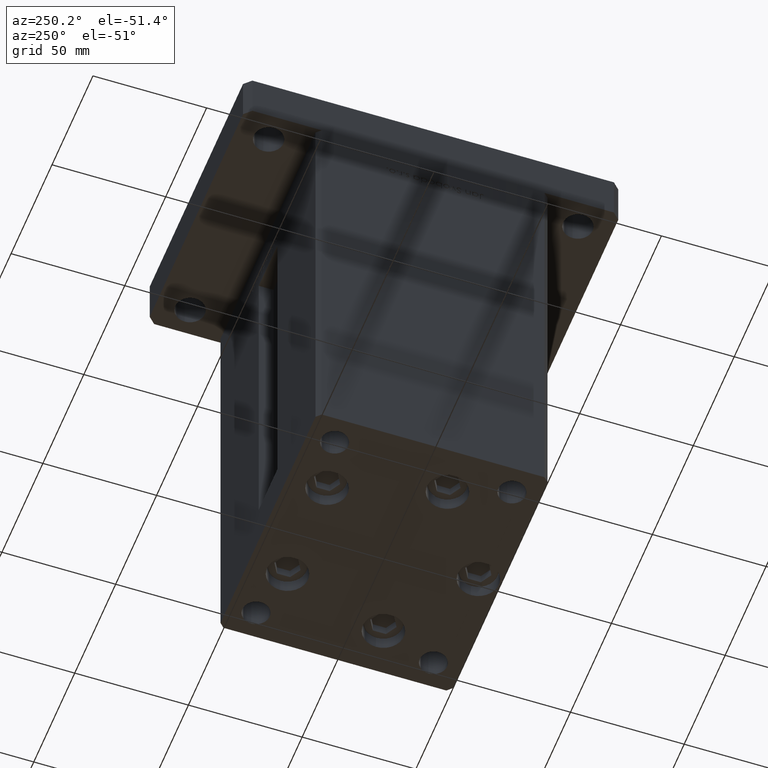
[diagram: clean part render]
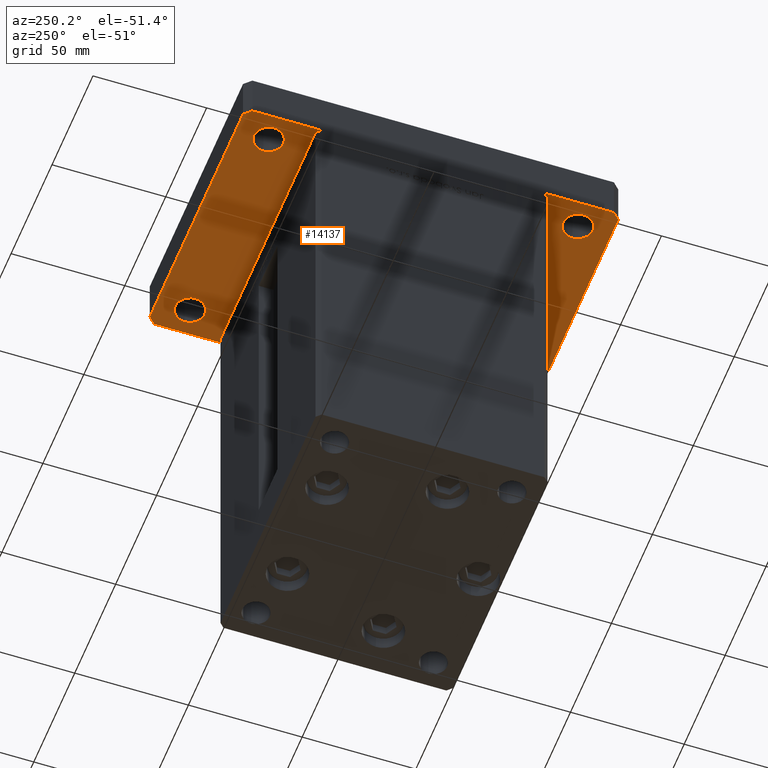
[diagram: same view with one face highlighted and labeled with its STEP entity id]
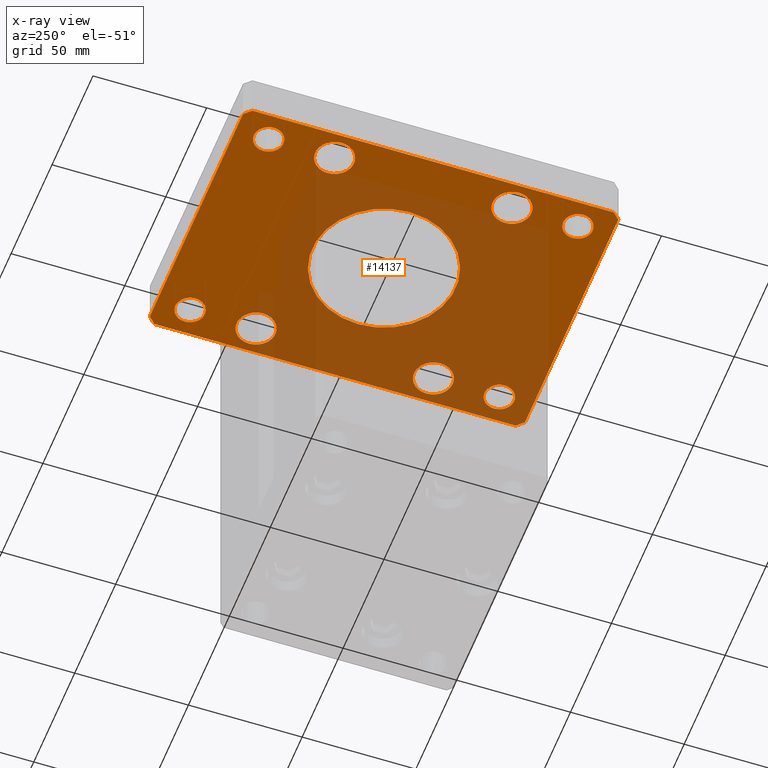
[diagram: x-ray of the same camera — body ghosted, the highlighted face saturated]
A machine part, auxiliary view. The second image highlights one B-rep face of the part: STEP entity #14137.
The next image is the same camera in x-ray: the body ghosted, the highlighted face saturated — about 54% of this face is hidden behind the body in this view.
In plain terms, the highlighted planar face has unit normal (0, 0, 1).
Its self-contained STEP definition (entity closure, byte-faithful):
#86 = CIRCLE ( 'NONE', #37488, 6.500000000000005329 ) ;
#91 = EDGE_CURVE ( 'NONE', #41751, #22124, #24953, .T. ) ;
#98 = VERTEX_POINT ( 'NONE', #51420 ) ;
#296 = DIRECTION ( 'NONE',  ( 1.000000000000000000, 0.000000000000000000, 0.000000000000000000 ) ) ;
#1046 = DIRECTION ( 'NONE',  ( -1.000000000000000000, 0.000000000000000000, 0.000000000000000000 ) ) ;
#1127 = EDGE_CURVE ( 'NONE', #25035, #98, #40641, .T. ) ;
#1267 = FACE_BOUND ( 'NONE', #40582, .T. ) ;
#1643 = CARTESIAN_POINT ( 'NONE',  ( -60.00000000000002842, 79.50000000000001421, 0.000000000000000000 ) ) ;
#1702 = ORIENTED_EDGE ( 'NONE', *, *, #20926, .F. ) ;
#1789 = DIRECTION ( 'NONE',  ( 0.000000000000000000, 0.000000000000000000, 1.000000000000000000 ) ) ;
#2055 = VERTEX_POINT ( 'NONE', #3555 ) ;
#2087 = DIRECTION ( 'NONE',  ( 1.000000000000000000, 0.000000000000000000, 0.000000000000000000 ) ) ;
#2108 = CIRCLE ( 'NONE', #32549, 6.500000000000005329 ) ;
#2254 = DIRECTION ( 'NONE',  ( 4.364084216293856438E-17, 1.000000000000000000, 0.000000000000000000 ) ) ;
#2275 = EDGE_LOOP ( 'NONE', ( #6219, #32734 ) ) ;
#2897 = VECTOR ( 'NONE', #24441, 1000.000000000000000 ) ;
#2934 = CIRCLE ( 'NONE', #42070, 8.499999999999992895 ) ;
#3437 = CARTESIAN_POINT ( 'NONE',  ( 41.49999999999996447, -68.00000000000001421, 0.000000000000000000 ) ) ;
#3555 = CARTESIAN_POINT ( 'NONE',  ( 60.00000000000000711, 79.50000000000001421, 0.000000000000000000 ) ) ;
#3631 = AXIS2_PLACEMENT_3D ( 'NONE', #51348, #1789, #21716 ) ;
#5509 = AXIS2_PLACEMENT_3D ( 'NONE', #25187, #33069, #41242 ) ;
#5605 = FACE_BOUND ( 'NONE', #50185, .T. ) ;
#5745 = CARTESIAN_POINT ( 'NONE',  ( -48.00000000000000000, 68.00000000000001421, 0.000000000000000000 ) ) ;
#5939 = DIRECTION ( 'NONE',  ( 1.000000000000000000, 0.000000000000000000, 0.000000000000000000 ) ) ;
#6126 = DIRECTION ( 'NONE',  ( 1.000000000000000000, 0.000000000000000000, 0.000000000000000000 ) ) ;
#6167 = CARTESIAN_POINT ( 'NONE',  ( 39.50000000000000711, -38.99999999999999289, 0.000000000000000000 ) ) ;
#6219 = ORIENTED_EDGE ( 'NONE', *, *, #33526, .T. ) ;
#6224 = VERTEX_POINT ( 'NONE', #50443 ) ;
#6356 = CARTESIAN_POINT ( 'NONE',  ( 56.49999999999999289, -38.99999999999999289, 0.000000000000000000 ) ) ;
#6959 = CIRCLE ( 'NONE', #13072, 8.499999999999992895 ) ;
#7361 = DIRECTION ( 'NONE',  ( 1.000000000000000000, 0.000000000000000000, 0.000000000000000000 ) ) ;
#7514 = DIRECTION ( 'NONE',  ( 1.000000000000000000, 0.000000000000000000, 0.000000000000000000 ) ) ;
#7699 = LINE ( 'NONE', #16422, #25408 ) ;
#8061 = LINE ( 'NONE', #41032, #20344 ) ;
#8070 = ORIENTED_EDGE ( 'NONE', *, *, #24130, .T. ) ;
#8234 = DIRECTION ( 'NONE',  ( -0.7071067811865474617, -0.7071067811865474617, 0.000000000000000000 ) ) ;
#8450 = CARTESIAN_POINT ( 'NONE',  ( 48.00000000000000000, -38.99999999999999289, 0.000000000000000000 ) ) ;
#9000 = DIRECTION ( 'NONE',  ( 0.000000000000000000, 0.000000000000000000, 1.000000000000000000 ) ) ;
#9168 = FACE_OUTER_BOUND ( 'NONE', #49647, .T. ) ;
#9648 = VECTOR ( 'NONE', #12539, 1000.000000000000114 ) ;
#9947 = CIRCLE ( 'NONE', #40400, 8.499999999999992895 ) ;
#10496 = FACE_BOUND ( 'NONE', #2275, .T. ) ;
#10772 = CIRCLE ( 'NONE', #19504, 8.500000000000000000 ) ;
#10837 = VERTEX_POINT ( 'NONE', #24177 ) ;
#11227 = VERTEX_POINT ( 'NONE', #20551 ) ;
#11555 = EDGE_LOOP ( 'NONE', ( #32812, #48335 ) ) ;
#11593 = CIRCLE ( 'NONE', #27265, 8.499999999999992895 ) ;
#11599 = CIRCLE ( 'NONE', #5509, 6.500000000000005329 ) ;
#11864 = CARTESIAN_POINT ( 'NONE',  ( 48.00000000000000000, 67.99999999999998579, 0.000000000000000000 ) ) ;
#12195 = DIRECTION ( 'NONE',  ( 1.000000000000000000, 0.000000000000000000, 0.000000000000000000 ) ) ;
#12331 = EDGE_CURVE ( 'NONE', #11227, #6224, #38354, .T. ) ;
#12539 = DIRECTION ( 'NONE',  ( 0.7071067811865459074, 0.7071067811865491270, 0.000000000000000000 ) ) ;
#12567 = VECTOR ( 'NONE', #8234, 1000.000000000000114 ) ;
#12592 = ORIENTED_EDGE ( 'NONE', *, *, #91, .T. ) ;
#13015 = VERTEX_POINT ( 'NONE', #1643 ) ;
#13028 = CARTESIAN_POINT ( 'NONE',  ( 0.000000000000000000, 0.000000000000000000, 0.000000000000000000 ) ) ;
#13072 = AXIS2_PLACEMENT_3D ( 'NONE', #8450, #9000, #296 ) ;
#13252 = DIRECTION ( 'NONE',  ( -0.7071067811865435759, 0.7071067811865515695, 0.000000000000000000 ) ) ;
#13518 = ORIENTED_EDGE ( 'NONE', *, *, #14122, .F. ) ;
#13519 = EDGE_LOOP ( 'NONE', ( #33398, #43189 ) ) ;
#13806 = CARTESIAN_POINT ( 'NONE',  ( -56.50000000000000711, -39.00000000000000000, 0.000000000000000000 ) ) ;
#13888 = DIRECTION ( 'NONE',  ( 0.000000000000000000, 0.000000000000000000, 1.000000000000000000 ) ) ;
#13962 = EDGE_CURVE ( 'NONE', #41924, #30371, #43579, .T. ) ;
#14075 = CIRCLE ( 'NONE', #34064, 6.500000000000005329 ) ;
#14122 = EDGE_CURVE ( 'NONE', #2055, #18824, #33682, .T. ) ;
#14137 = ADVANCED_FACE ( 'NONE', ( #46474, #9168, #42392, #20365, #36974, #16279, #1267, #5605, #47796, #10496 ), #17623, .F. ) ;
#14256 = VERTEX_POINT ( 'NONE', #27392 ) ;
#14883 = EDGE_CURVE ( 'NONE', #32391, #10837, #14075, .T. ) ;
#15632 = DIRECTION ( 'NONE',  ( 1.000000000000000000, 0.000000000000000000, 0.000000000000000000 ) ) ;
#15695 = EDGE_CURVE ( 'NONE', #16533, #44955, #50101, .T. ) ;
#15980 = CARTESIAN_POINT ( 'NONE',  ( 60.00000000000000000, -79.49999999999990052, 0.000000000000000000 ) ) ;
#16279 = FACE_BOUND ( 'NONE', #13519, .T. ) ;
#16422 = CARTESIAN_POINT ( 'NONE',  ( -60.00000000000002842, 79.50000000000001421, 0.000000000000000000 ) ) ;
#16522 = ORIENTED_EDGE ( 'NONE', *, *, #36143, .T. ) ;
#16533 = VERTEX_POINT ( 'NONE', #22885 ) ;
#16990 = VERTEX_POINT ( 'NONE', #3437 ) ;
#17082 = AXIS2_PLACEMENT_3D ( 'NONE', #32124, #51539, #39285 ) ;
#17441 = AXIS2_PLACEMENT_3D ( 'NONE', #34052, #21285, #41418 ) ;
#17479 = AXIS2_PLACEMENT_3D ( 'NONE', #35427, #30274, #22378 ) ;
#17623 = PLANE ( 'NONE',  #3631 ) ;
#18479 = DIRECTION ( 'NONE',  ( 0.000000000000000000, 0.000000000000000000, -1.000000000000000000 ) ) ;
#18682 = CARTESIAN_POINT ( 'NONE',  ( -57.00000000000003553, 82.50000000000000000, 0.000000000000000000 ) ) ;
#18824 = VERTEX_POINT ( 'NONE', #50764 ) ;
#19504 = AXIS2_PLACEMENT_3D ( 'NONE', #23818, #52931, #15632 ) ;
#20344 = VECTOR ( 'NONE', #53291, 1000.000000000000114 ) ;
#20365 = FACE_BOUND ( 'NONE', #41309, .T. ) ;
#20387 = VECTOR ( 'NONE', #21684, 1000.000000000000000 ) ;
#20551 = CARTESIAN_POINT ( 'NONE',  ( 54.50000000000000711, 67.99999999999998579, 0.000000000000000000 ) ) ;
#20926 = EDGE_CURVE ( 'NONE', #44955, #2055, #52074, .T. ) ;
#20935 = CARTESIAN_POINT ( 'NONE',  ( -47.99999999999997158, -68.00000000000001421, 0.000000000000000000 ) ) ;
#21285 = DIRECTION ( 'NONE',  ( 0.000000000000000000, 0.000000000000000000, 1.000000000000000000 ) ) ;
#21684 = DIRECTION ( 'NONE',  ( -1.000000000000000000, -2.434699615406043739E-16, 0.000000000000000000 ) ) ;
#21707 = ORIENTED_EDGE ( 'NONE', *, *, #27081, .F. ) ;
#21716 = DIRECTION ( 'NONE',  ( 1.000000000000000000, 0.000000000000000000, -0.000000000000000000 ) ) ;
#22124 = VERTEX_POINT ( 'NONE', #26717 ) ;
#22378 = DIRECTION ( 'NONE',  ( 1.000000000000000000, 0.000000000000000000, 0.000000000000000000 ) ) ;
#22380 = DIRECTION ( 'NONE',  ( 0.000000000000000000, 0.000000000000000000, 1.000000000000000000 ) ) ;
#22433 = VERTEX_POINT ( 'NONE', #46742 ) ;
#22467 = CARTESIAN_POINT ( 'NONE',  ( -41.49999999999999289, 68.00000000000001421, 0.000000000000000000 ) ) ;
#22580 = CARTESIAN_POINT ( 'NONE',  ( 0.000000000000000000, 0.000000000000000000, 0.000000000000000000 ) ) ;
#22808 = CARTESIAN_POINT ( 'NONE',  ( -47.99999999999997158, -68.00000000000001421, 0.000000000000000000 ) ) ;
#22885 = CARTESIAN_POINT ( 'NONE',  ( 57.00000000000000711, -82.49999999999990052, 0.000000000000000000 ) ) ;
#23372 = ORIENTED_EDGE ( 'NONE', *, *, #38805, .F. ) ;
#23382 = ORIENTED_EDGE ( 'NONE', *, *, #25443, .T. ) ;
#23512 = CARTESIAN_POINT ( 'NONE',  ( 60.00000000000000000, -79.49999999999990052, 0.000000000000000000 ) ) ;
#23779 = AXIS2_PLACEMENT_3D ( 'NONE', #13028, #47043, #1046 ) ;
#23818 = CARTESIAN_POINT ( 'NONE',  ( -48.00000000000000711, -39.00000000000000000, 0.000000000000000000 ) ) ;
#24099 = AXIS2_PLACEMENT_3D ( 'NONE', #41115, #29665, #5939 ) ;
#24130 = EDGE_CURVE ( 'NONE', #98, #25035, #2934, .T. ) ;
#24177 = CARTESIAN_POINT ( 'NONE',  ( -54.50000000000000711, 68.00000000000001421, 0.000000000000000000 ) ) ;
#24342 = DIRECTION ( 'NONE',  ( 2.618450529776312260E-16, -1.000000000000000000, 0.000000000000000000 ) ) ;
#24441 = DIRECTION ( 'NONE',  ( 1.000000000000000000, 9.738798461624180871E-16, 0.000000000000000000 ) ) ;
#24673 = DIRECTION ( 'NONE',  ( 1.000000000000000000, 0.000000000000000000, 0.000000000000000000 ) ) ;
#24953 = CIRCLE ( 'NONE', #24099, 8.499999999999992895 ) ;
#25002 = DIRECTION ( 'NONE',  ( 0.000000000000000000, 0.000000000000000000, 1.000000000000000000 ) ) ;
#25035 = VERTEX_POINT ( 'NONE', #42050 ) ;
#25187 = CARTESIAN_POINT ( 'NONE',  ( 47.99999999999997158, -68.00000000000001421, 0.000000000000000000 ) ) ;
#25408 = VECTOR ( 'NONE', #24342, 1000.000000000000000 ) ;
#25436 = ORIENTED_EDGE ( 'NONE', *, *, #12331, .T. ) ;
#25443 = EDGE_CURVE ( 'NONE', #10837, #32391, #30785, .T. ) ;
#25629 = ORIENTED_EDGE ( 'NONE', *, *, #45315, .T. ) ;
#25665 = ORIENTED_EDGE ( 'NONE', *, *, #14883, .T. ) ;
#26217 = CARTESIAN_POINT ( 'NONE',  ( -31.50000000000000000, 0.000000000000000000, 0.000000000000000000 ) ) ;
#26557 = AXIS2_PLACEMENT_3D ( 'NONE', #22808, #39394, #2087 ) ;
#26607 = CARTESIAN_POINT ( 'NONE',  ( -59.99999999999998579, -79.50000000000002842, 0.000000000000000000 ) ) ;
#26717 = CARTESIAN_POINT ( 'NONE',  ( 56.49999999999999289, 38.99999999999999289, 0.000000000000000000 ) ) ;
#27081 = EDGE_CURVE ( 'NONE', #18824, #41713, #33647, .T. ) ;
#27265 = AXIS2_PLACEMENT_3D ( 'NONE', #34854, #13888, #33787 ) ;
#27392 = CARTESIAN_POINT ( 'NONE',  ( -56.99999999999999289, -82.50000000000001421, 0.000000000000000000 ) ) ;
#27450 = EDGE_LOOP ( 'NONE', ( #23382, #25665 ) ) ;
#28015 = VECTOR ( 'NONE', #13252, 999.9999999999998863 ) ;
#28506 = LINE ( 'NONE', #41033, #2897 ) ;
#29255 = CARTESIAN_POINT ( 'NONE',  ( 31.50000000000000000, 3.857637417314162689E-15, 0.000000000000000000 ) ) ;
#29363 = DIRECTION ( 'NONE',  ( 1.000000000000000000, 0.000000000000000000, 0.000000000000000000 ) ) ;
#29665 = DIRECTION ( 'NONE',  ( 0.000000000000000000, 0.000000000000000000, 1.000000000000000000 ) ) ;
#30178 = VERTEX_POINT ( 'NONE', #13806 ) ;
#30274 = DIRECTION ( 'NONE',  ( 0.000000000000000000, 0.000000000000000000, 1.000000000000000000 ) ) ;
#30371 = VERTEX_POINT ( 'NONE', #26217 ) ;
#30445 = CIRCLE ( 'NONE', #17441, 6.500000000000005329 ) ;
#30578 = ORIENTED_EDGE ( 'NONE', *, *, #1127, .T. ) ;
#30785 = CIRCLE ( 'NONE', #32546, 6.500000000000005329 ) ;
#30862 = CIRCLE ( 'NONE', #26557, 6.500000000000005329 ) ;
#31195 = CARTESIAN_POINT ( 'NONE',  ( 39.50000000000000711, 38.99999999999999289, 0.000000000000000000 ) ) ;
#31257 = CARTESIAN_POINT ( 'NONE',  ( -54.49999999999997868, -68.00000000000001421, 0.000000000000000000 ) ) ;
#31608 = VERTEX_POINT ( 'NONE', #6356 ) ;
#32038 = DIRECTION ( 'NONE',  ( 0.000000000000000000, 0.000000000000000000, 1.000000000000000000 ) ) ;
#32124 = CARTESIAN_POINT ( 'NONE',  ( -48.00000000000000711, -39.00000000000000000, 0.000000000000000000 ) ) ;
#32391 = VERTEX_POINT ( 'NONE', #22467 ) ;
#32546 = AXIS2_PLACEMENT_3D ( 'NONE', #5745, #22380, #46339 ) ;
#32549 = AXIS2_PLACEMENT_3D ( 'NONE', #20935, #32649, #29363 ) ;
#32649 = DIRECTION ( 'NONE',  ( 0.000000000000000000, 0.000000000000000000, 1.000000000000000000 ) ) ;
#32734 = ORIENTED_EDGE ( 'NONE', *, *, #41897, .T. ) ;
#32756 = LINE ( 'NONE', #33027, #12567 ) ;
#32812 = ORIENTED_EDGE ( 'NONE', *, *, #49995, .T. ) ;
#33027 = CARTESIAN_POINT ( 'NONE',  ( -57.00000000000003553, 82.50000000000000000, 0.000000000000000000 ) ) ;
#33052 = VERTEX_POINT ( 'NONE', #6167 ) ;
#33069 = DIRECTION ( 'NONE',  ( 0.000000000000000000, 0.000000000000000000, 1.000000000000000000 ) ) ;
#33222 = CARTESIAN_POINT ( 'NONE',  ( -48.00000000000000000, 68.00000000000001421, 0.000000000000000000 ) ) ;
#33258 = ORIENTED_EDGE ( 'NONE', *, *, #46561, .F. ) ;
#33398 = ORIENTED_EDGE ( 'NONE', *, *, #43112, .T. ) ;
#33489 = ORIENTED_EDGE ( 'NONE', *, *, #44765, .F. ) ;
#33516 = EDGE_CURVE ( 'NONE', #31608, #33052, #6959, .T. ) ;
#33526 = EDGE_CURVE ( 'NONE', #16990, #43358, #30445, .T. ) ;
#33647 = LINE ( 'NONE', #41284, #20387 ) ;
#33682 = LINE ( 'NONE', #50286, #28015 ) ;
#33787 = DIRECTION ( 'NONE',  ( 1.000000000000000000, 0.000000000000000000, 0.000000000000000000 ) ) ;
#34033 = AXIS2_PLACEMENT_3D ( 'NONE', #22580, #18479, #51956 ) ;
#34052 = CARTESIAN_POINT ( 'NONE',  ( 47.99999999999997158, -68.00000000000001421, 0.000000000000000000 ) ) ;
#34057 = EDGE_LOOP ( 'NONE', ( #30578, #8070 ) ) ;
#34064 = AXIS2_PLACEMENT_3D ( 'NONE', #33222, #36780, #7361 ) ;
#34213 = DIRECTION ( 'NONE',  ( 0.000000000000000000, 0.000000000000000000, 1.000000000000000000 ) ) ;
#34854 = CARTESIAN_POINT ( 'NONE',  ( 48.00000000000000000, -38.99999999999999289, 0.000000000000000000 ) ) ;
#35427 = CARTESIAN_POINT ( 'NONE',  ( 48.00000000000000000, 67.99999999999998579, 0.000000000000000000 ) ) ;
#36143 = EDGE_CURVE ( 'NONE', #6224, #11227, #86, .T. ) ;
#36295 = EDGE_LOOP ( 'NONE', ( #48817, #48045 ) ) ;
#36478 = VERTEX_POINT ( 'NONE', #31257 ) ;
#36780 = DIRECTION ( 'NONE',  ( 0.000000000000000000, 0.000000000000000000, 1.000000000000000000 ) ) ;
#36974 = FACE_BOUND ( 'NONE', #27450, .T. ) ;
#37488 = AXIS2_PLACEMENT_3D ( 'NONE', #11864, #45073, #24673 ) ;
#38354 = CIRCLE ( 'NONE', #17479, 6.500000000000005329 ) ;
#38805 = EDGE_CURVE ( 'NONE', #13015, #49935, #7699, .T. ) ;
#39285 = DIRECTION ( 'NONE',  ( 1.000000000000000000, 0.000000000000000000, 0.000000000000000000 ) ) ;
#39394 = DIRECTION ( 'NONE',  ( 0.000000000000000000, 0.000000000000000000, 1.000000000000000000 ) ) ;
#40400 = AXIS2_PLACEMENT_3D ( 'NONE', #44557, #32038, #7514 ) ;
#40582 = EDGE_LOOP ( 'NONE', ( #25629, #53284 ) ) ;
#40641 = CIRCLE ( 'NONE', #50195, 8.499999999999992895 ) ;
#40795 = EDGE_CURVE ( 'NONE', #14256, #16533, #28506, .T. ) ;
#41032 = CARTESIAN_POINT ( 'NONE',  ( -59.99999999999998579, -79.50000000000002842, 0.000000000000000000 ) ) ;
#41033 = CARTESIAN_POINT ( 'NONE',  ( -56.99999999999999289, -82.50000000000001421, 0.000000000000000000 ) ) ;
#41115 = CARTESIAN_POINT ( 'NONE',  ( 48.00000000000000000, 38.99999999999999289, 0.000000000000000000 ) ) ;
#41242 = DIRECTION ( 'NONE',  ( 1.000000000000000000, 0.000000000000000000, 0.000000000000000000 ) ) ;
#41284 = CARTESIAN_POINT ( 'NONE',  ( 57.00000000000002132, 82.50000000000002842, 0.000000000000000000 ) ) ;
#41309 = EDGE_LOOP ( 'NONE', ( #16522, #25436 ) ) ;
#41418 = DIRECTION ( 'NONE',  ( 1.000000000000000000, 0.000000000000000000, 0.000000000000000000 ) ) ;
#41713 = VERTEX_POINT ( 'NONE', #18682 ) ;
#41751 = VERTEX_POINT ( 'NONE', #31195 ) ;
#41863 = CARTESIAN_POINT ( 'NONE',  ( -48.00000000000001421, 39.00000000000000000, 0.000000000000000000 ) ) ;
#41897 = EDGE_CURVE ( 'NONE', #43358, #16990, #11599, .T. ) ;
#41924 = VERTEX_POINT ( 'NONE', #29255 ) ;
#42050 = CARTESIAN_POINT ( 'NONE',  ( -56.50000000000000711, 39.00000000000000000, 0.000000000000000000 ) ) ;
#42070 = AXIS2_PLACEMENT_3D ( 'NONE', #42643, #34213, #6126 ) ;
#42209 = CARTESIAN_POINT ( 'NONE',  ( 57.00000000000000711, -82.49999999999990052, 0.000000000000000000 ) ) ;
#42358 = VERTEX_POINT ( 'NONE', #46622 ) ;
#42392 = FACE_BOUND ( 'NONE', #11555, .T. ) ;
#42643 = CARTESIAN_POINT ( 'NONE',  ( -48.00000000000001421, 39.00000000000000000, 0.000000000000000000 ) ) ;
#43112 = EDGE_CURVE ( 'NONE', #30178, #42358, #10772, .T. ) ;
#43189 = ORIENTED_EDGE ( 'NONE', *, *, #53411, .T. ) ;
#43358 = VERTEX_POINT ( 'NONE', #48507 ) ;
#43579 = CIRCLE ( 'NONE', #34033, 31.50000000000000000 ) ;
#44297 = EDGE_CURVE ( 'NONE', #22433, #36478, #2108, .T. ) ;
#44557 = CARTESIAN_POINT ( 'NONE',  ( 48.00000000000000000, 38.99999999999999289, 0.000000000000000000 ) ) ;
#44765 = EDGE_CURVE ( 'NONE', #41713, #13015, #32756, .T. ) ;
#44947 = EDGE_CURVE ( 'NONE', #22124, #41751, #9947, .T. ) ;
#44955 = VERTEX_POINT ( 'NONE', #15980 ) ;
#45073 = DIRECTION ( 'NONE',  ( 0.000000000000000000, 0.000000000000000000, 1.000000000000000000 ) ) ;
#45315 = EDGE_CURVE ( 'NONE', #33052, #31608, #11593, .T. ) ;
#46324 = EDGE_CURVE ( 'NONE', #30371, #41924, #49867, .T. ) ;
#46339 = DIRECTION ( 'NONE',  ( 1.000000000000000000, 0.000000000000000000, 0.000000000000000000 ) ) ;
#46474 = FACE_BOUND ( 'NONE', #36295, .T. ) ;
#46561 = EDGE_CURVE ( 'NONE', #49935, #14256, #8061, .T. ) ;
#46622 = CARTESIAN_POINT ( 'NONE',  ( -39.50000000000000711, -39.00000000000000000, 0.000000000000000000 ) ) ;
#46742 = CARTESIAN_POINT ( 'NONE',  ( -41.49999999999996447, -68.00000000000001421, 0.000000000000000000 ) ) ;
#47043 = DIRECTION ( 'NONE',  ( 0.000000000000000000, 0.000000000000000000, -1.000000000000000000 ) ) ;
#47312 = ORIENTED_EDGE ( 'NONE', *, *, #15695, .F. ) ;
#47796 = FACE_BOUND ( 'NONE', #34057, .T. ) ;
#48045 = ORIENTED_EDGE ( 'NONE', *, *, #13962, .F. ) ;
#48335 = ORIENTED_EDGE ( 'NONE', *, *, #44297, .T. ) ;
#48507 = CARTESIAN_POINT ( 'NONE',  ( 54.49999999999997868, -68.00000000000001421, 0.000000000000000000 ) ) ;
#48817 = ORIENTED_EDGE ( 'NONE', *, *, #46324, .F. ) ;
#48951 = VECTOR ( 'NONE', #2254, 1000.000000000000000 ) ;
#49081 = ORIENTED_EDGE ( 'NONE', *, *, #40795, .F. ) ;
#49122 = ORIENTED_EDGE ( 'NONE', *, *, #44947, .T. ) ;
#49647 = EDGE_LOOP ( 'NONE', ( #49081, #33258, #23372, #33489, #21707, #13518, #1702, #47312 ) ) ;
#49867 = CIRCLE ( 'NONE', #23779, 31.50000000000000000 ) ;
#49935 = VERTEX_POINT ( 'NONE', #26607 ) ;
#49995 = EDGE_CURVE ( 'NONE', #36478, #22433, #30862, .T. ) ;
#50101 = LINE ( 'NONE', #42209, #9648 ) ;
#50105 = CIRCLE ( 'NONE', #17082, 8.500000000000000000 ) ;
#50185 = EDGE_LOOP ( 'NONE', ( #12592, #49122 ) ) ;
#50195 = AXIS2_PLACEMENT_3D ( 'NONE', #41863, #25002, #12195 ) ;
#50286 = CARTESIAN_POINT ( 'NONE',  ( 60.00000000000000711, 79.50000000000001421, 0.000000000000000000 ) ) ;
#50443 = CARTESIAN_POINT ( 'NONE',  ( 41.49999999999999289, 67.99999999999998579, 0.000000000000000000 ) ) ;
#50764 = CARTESIAN_POINT ( 'NONE',  ( 57.00000000000002132, 82.50000000000002842, 0.000000000000000000 ) ) ;
#51348 = CARTESIAN_POINT ( 'NONE',  ( 0.000000000000000000, 0.000000000000000000, 0.000000000000000000 ) ) ;
#51420 = CARTESIAN_POINT ( 'NONE',  ( -39.50000000000002132, 39.00000000000000000, 0.000000000000000000 ) ) ;
#51539 = DIRECTION ( 'NONE',  ( 0.000000000000000000, 0.000000000000000000, 1.000000000000000000 ) ) ;
#51956 = DIRECTION ( 'NONE',  ( -1.000000000000000000, 0.000000000000000000, 0.000000000000000000 ) ) ;
#52074 = LINE ( 'NONE', #23512, #48951 ) ;
#52931 = DIRECTION ( 'NONE',  ( 0.000000000000000000, 0.000000000000000000, 1.000000000000000000 ) ) ;
#53284 = ORIENTED_EDGE ( 'NONE', *, *, #33516, .T. ) ;
#53291 = DIRECTION ( 'NONE',  ( 0.7071067811865474617, -0.7071067811865474617, 0.000000000000000000 ) ) ;
#53411 = EDGE_CURVE ( 'NONE', #42358, #30178, #50105, .T. ) ;